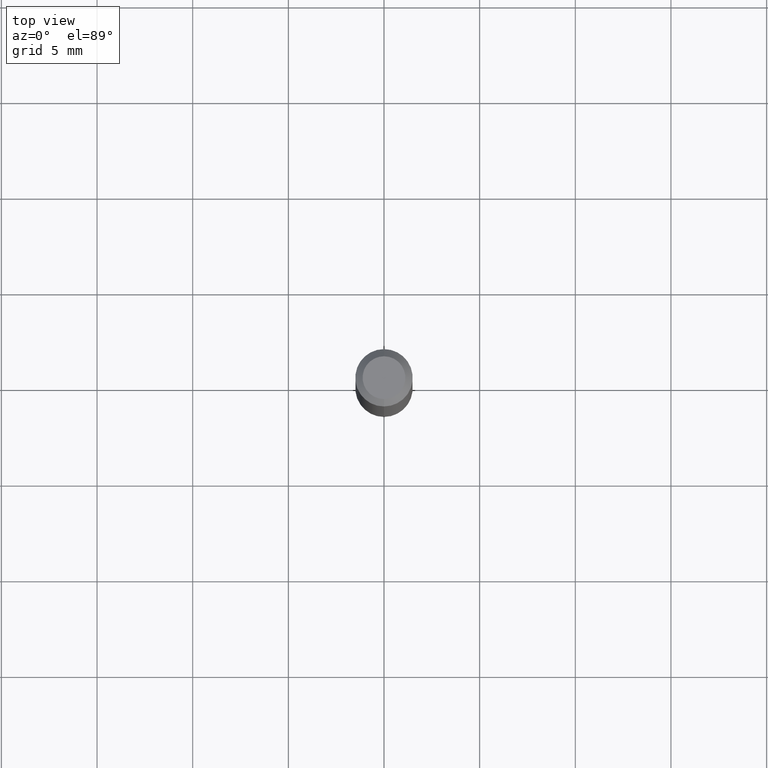
[diagram: clean part render]
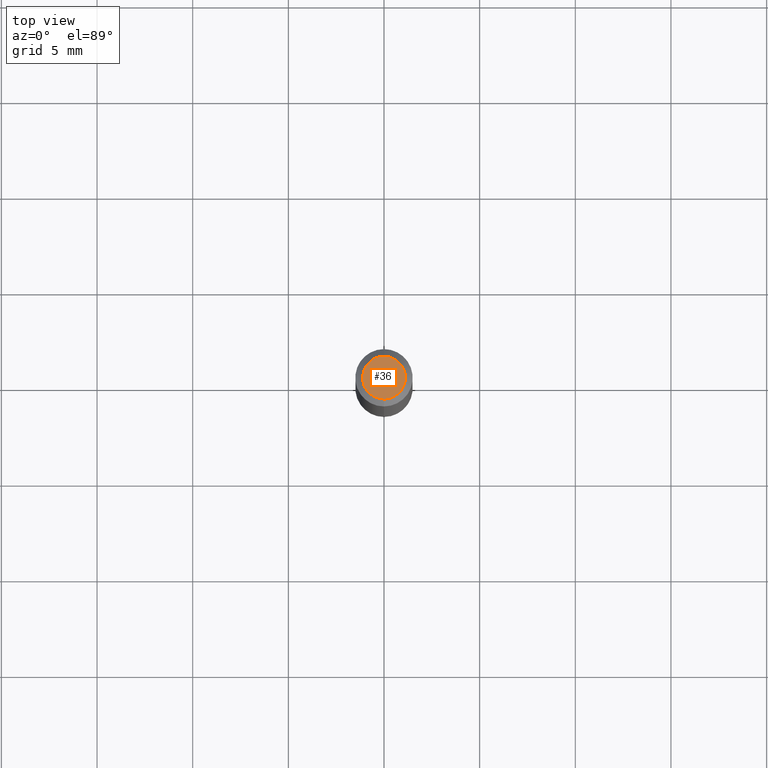
[diagram: same view with one face highlighted and labeled with its STEP entity id]
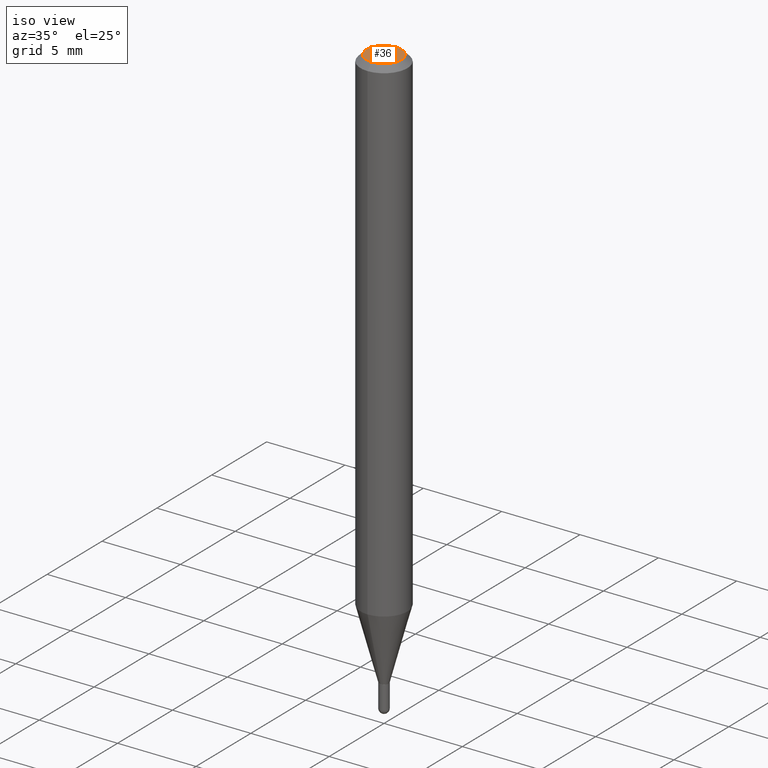
[diagram: same view with one face highlighted and labeled with its STEP entity id]
A machine part, top view. The second image highlights one B-rep face of the part: STEP entity #36.
A second angle (iso view) of the same face is appended — the face is thin or edge-on in the first view.
In plain terms, the highlighted planar face has unit normal (0, -0, -1).
Its self-contained STEP definition (entity closure, byte-faithful):
#36 = ADVANCED_FACE ( 'NONE', ( #510 ), #361, .F. ) ;
#53 = AXIS2_PLACEMENT_3D ( 'NONE', #423, #93, #257 ) ;
#85 = CARTESIAN_POINT ( 'NONE',  ( 3.075995059520799729E-16, 0.04404999999999999888, -1.940518418858048862E-16 ) ) ;
#87 = CIRCLE ( 'NONE', #53, 0.04404999999999999888 ) ;
#93 = DIRECTION ( 'NONE',  ( -2.445436776855933528E-29, 3.491527206665560554E-15, 1.000000000000000000 ) ) ;
#124 = CARTESIAN_POINT ( 'NONE',  ( -3.536586717851222218E-16, -0.04404999999999999888, 7.330163658924400342E-17 ) ) ;
#142 = AXIS2_PLACEMENT_3D ( 'NONE', #192, #195, #156 ) ;
#148 = ORIENTED_EDGE ( 'NONE', *, *, #194, .T. ) ;
#156 = DIRECTION ( 'NONE',  ( -6.982962677686265133E-15, -1.000000000000000000, 3.491527206665560554E-15 ) ) ;
#192 = CARTESIAN_POINT ( 'NONE',  ( 1.968579952300760536E-45, -2.810684180022627674E-31, -8.050013686437390955E-17 ) ) ;
#194 = EDGE_CURVE ( 'NONE', #294, #232, #87, .T. ) ;
#195 = DIRECTION ( 'NONE',  ( -2.445436776855933528E-29, 3.491527206665560554E-15, 1.000000000000000000 ) ) ;
#232 = VERTEX_POINT ( 'NONE', #372 ) ;
#250 = DIRECTION ( 'NONE',  ( 6.982962677686265922E-15, 1.000000000000000000, -3.491527206665560554E-15 ) ) ;
#257 = DIRECTION ( 'NONE',  ( -6.982962677686265133E-15, -1.000000000000000000, 3.491527206665560554E-15 ) ) ;
#286 = DIRECTION ( 'NONE',  ( 2.445436776855933247E-29, -3.491527206665560554E-15, -1.000000000000000000 ) ) ;
#294 = VERTEX_POINT ( 'NONE', #124 ) ;
#320 = CIRCLE ( 'NONE', #142, 0.04404999999999999888 ) ;
#330 = AXIS2_PLACEMENT_3D ( 'NONE', #85, #286, #250 ) ;
#354 = ORIENTED_EDGE ( 'NONE', *, *, #368, .T. ) ;
#361 = PLANE ( 'NONE',  #330 ) ;
#368 = EDGE_CURVE ( 'NONE', #232, #294, #320, .T. ) ;
#372 = CARTESIAN_POINT ( 'NONE',  ( 3.599717260347271507E-16, 0.04404999999999999888, -2.343019103179918348E-16 ) ) ;
#423 = CARTESIAN_POINT ( 'NONE',  ( 1.968579952300760536E-45, -2.810684180022627674E-31, -8.050013686437390955E-17 ) ) ;
#425 = EDGE_LOOP ( 'NONE', ( #354, #148 ) ) ;
#510 = FACE_OUTER_BOUND ( 'NONE', #425, .T. ) ;